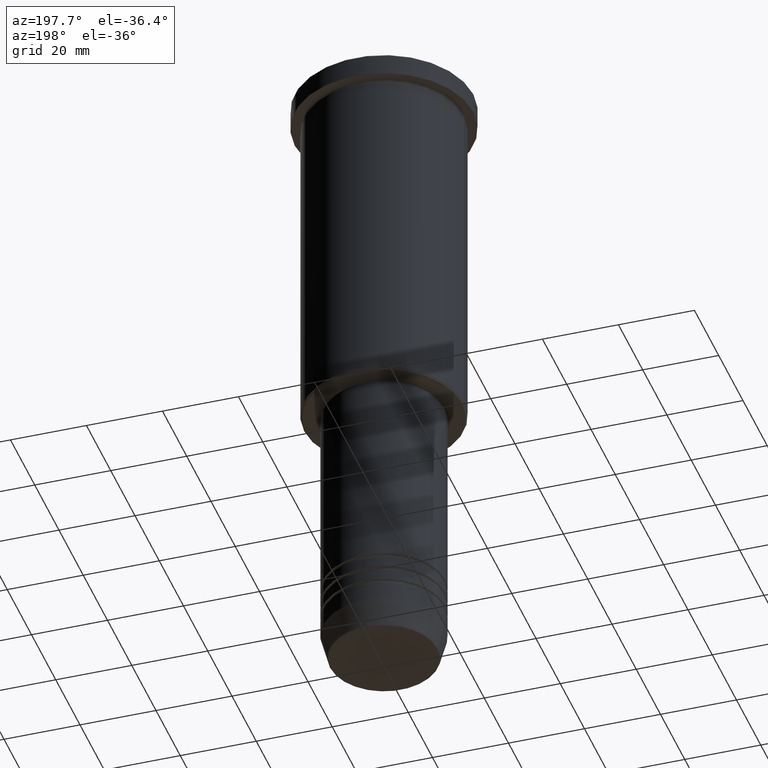
[diagram: clean part render]
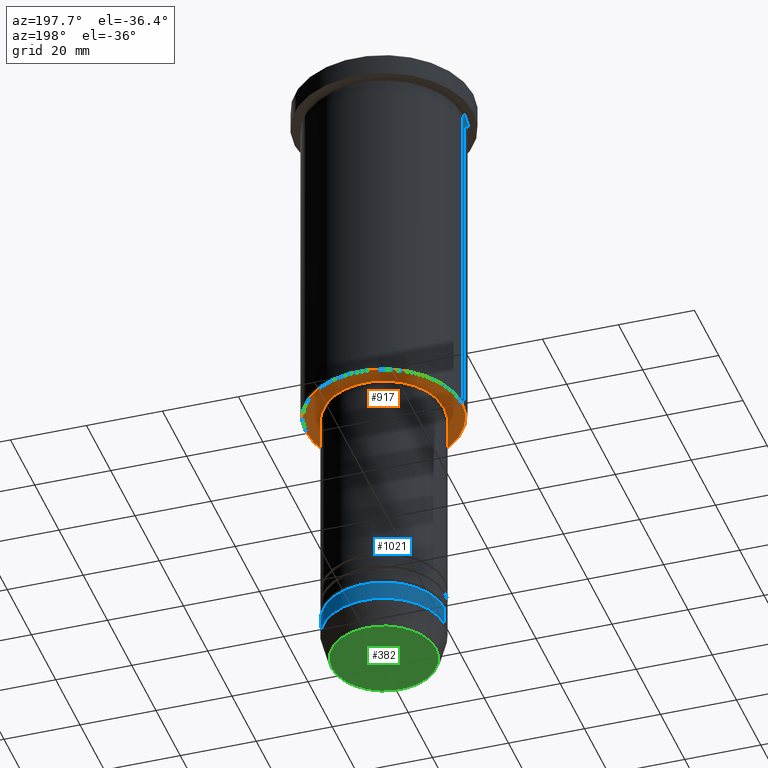
[diagram: same view with three faces highlighted in distinct colors, each labeled with its STEP entity id]
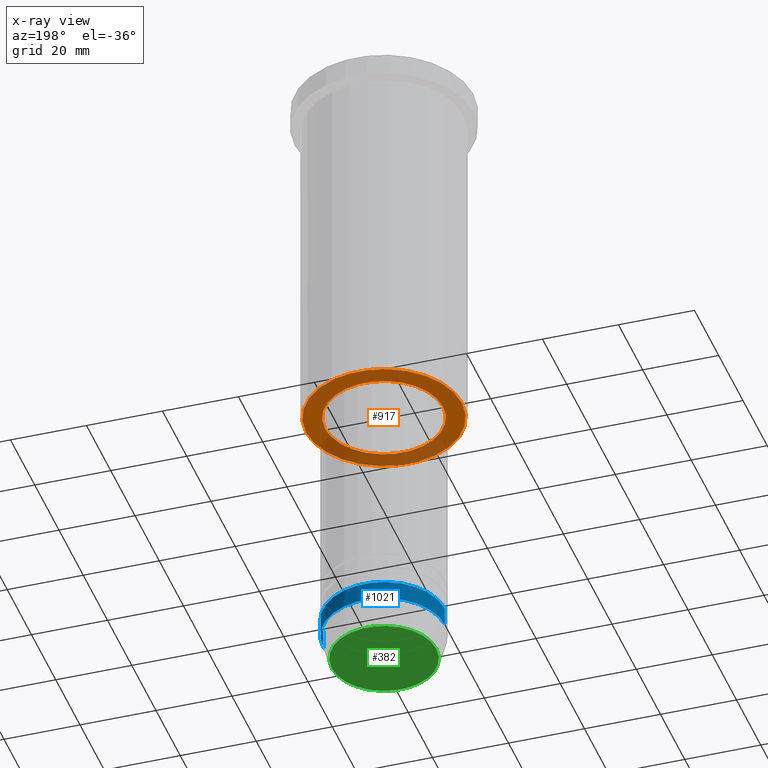
[diagram: x-ray of the same camera — body ghosted, the three highlighted faces saturated]
A machine part, auxiliary view with three faces highlighted in distinct colors.
The next image is the same camera in x-ray (body ghosted, the three faces saturated) — at least one of them is partly hidden behind the body in this view.
Their STEP definitions:

[orange] entity #917 — the highlighted planar face has unit normal (0, 0, -1).
#30 = CARTESIAN_POINT ( 'NONE',  ( -20.49999999999998934, 2.541142108230757480E-15, -95.99999999999997158 ) ) ;
#39 = CARTESIAN_POINT ( 'NONE',  ( -15.50000000000000000, 1.898202538678397557E-15, -95.99999999999997158 ) ) ;
#50 = CARTESIAN_POINT ( 'NONE',  ( 0.000000000000000000, 0.000000000000000000, -95.99999999999997158 ) ) ;
#58 = CARTESIAN_POINT ( 'NONE',  ( 0.000000000000000000, 0.000000000000000000, -95.99999999999997158 ) ) ;
#121 = CARTESIAN_POINT ( 'NONE',  ( 15.50000000000000000, 0.000000000000000000, -95.99999999999997158 ) ) ;
#196 = ORIENTED_EDGE ( 'NONE', *, *, #252, .T. ) ;
#199 = FACE_BOUND ( 'NONE', #1111, .T. ) ;
#219 = AXIS2_PLACEMENT_3D ( 'NONE', #796, #984, #529 ) ;
#252 = EDGE_CURVE ( 'NONE', #874, #349, #380, .T. ) ;
#263 = AXIS2_PLACEMENT_3D ( 'NONE', #58, #958, #1149 ) ;
#277 = CIRCLE ( 'NONE', #219, 20.49999999999998934 ) ;
#284 = AXIS2_PLACEMENT_3D ( 'NONE', #844, #1103, #742 ) ;
#298 = AXIS2_PLACEMENT_3D ( 'NONE', #50, #593, #521 ) ;
#349 = VERTEX_POINT ( 'NONE', #39 ) ;
#377 = VERTEX_POINT ( 'NONE', #30 ) ;
#380 = CIRCLE ( 'NONE', #263, 15.50000000000000000 ) ;
#453 = CARTESIAN_POINT ( 'NONE',  ( 20.49999999999998934, 0.000000000000000000, -95.99999999999997158 ) ) ;
#521 = DIRECTION ( 'NONE',  ( 1.000000000000000000, 0.000000000000000000, 0.000000000000000000 ) ) ;
#529 = DIRECTION ( 'NONE',  ( -1.000000000000000000, 0.000000000000000000, 0.000000000000000000 ) ) ;
#569 = AXIS2_PLACEMENT_3D ( 'NONE', #780, #1049, #1059 ) ;
#593 = DIRECTION ( 'NONE',  ( -0.000000000000000000, -0.000000000000000000, 1.000000000000000000 ) ) ;
#610 = ORIENTED_EDGE ( 'NONE', *, *, #1056, .T. ) ;
#670 = FACE_OUTER_BOUND ( 'NONE', #800, .T. ) ;
#708 = ORIENTED_EDGE ( 'NONE', *, *, #1167, .T. ) ;
#715 = VERTEX_POINT ( 'NONE', #453 ) ;
#742 = DIRECTION ( 'NONE',  ( -1.000000000000000000, 0.000000000000000000, -0.000000000000000000 ) ) ;
#780 = CARTESIAN_POINT ( 'NONE',  ( 0.000000000000000000, 0.000000000000000000, -95.99999999999997158 ) ) ;
#796 = CARTESIAN_POINT ( 'NONE',  ( 0.000000000000000000, 0.000000000000000000, -95.99999999999997158 ) ) ;
#800 = EDGE_LOOP ( 'NONE', ( #987, #708 ) ) ;
#817 = CIRCLE ( 'NONE', #298, 15.50000000000000000 ) ;
#844 = CARTESIAN_POINT ( 'NONE',  ( 0.000000000000000000, 21.00000000000000000, -95.99999999999997158 ) ) ;
#874 = VERTEX_POINT ( 'NONE', #121 ) ;
#917 = ADVANCED_FACE ( 'NONE', ( #670, #199 ), #1007, .T. ) ;
#958 = DIRECTION ( 'NONE',  ( -0.000000000000000000, -0.000000000000000000, 1.000000000000000000 ) ) ;
#984 = DIRECTION ( 'NONE',  ( 0.000000000000000000, 0.000000000000000000, -1.000000000000000000 ) ) ;
#987 = ORIENTED_EDGE ( 'NONE', *, *, #1005, .T. ) ;
#1005 = EDGE_CURVE ( 'NONE', #715, #377, #1079, .T. ) ;
#1007 = PLANE ( 'NONE',  #284 ) ;
#1049 = DIRECTION ( 'NONE',  ( 0.000000000000000000, 0.000000000000000000, -1.000000000000000000 ) ) ;
#1056 = EDGE_CURVE ( 'NONE', #349, #874, #817, .T. ) ;
#1059 = DIRECTION ( 'NONE',  ( -1.000000000000000000, 0.000000000000000000, 0.000000000000000000 ) ) ;
#1079 = CIRCLE ( 'NONE', #569, 20.49999999999998934 ) ;
#1103 = DIRECTION ( 'NONE',  ( 0.000000000000000000, 0.000000000000000000, -1.000000000000000000 ) ) ;
#1111 = EDGE_LOOP ( 'NONE', ( #196, #610 ) ) ;
#1149 = DIRECTION ( 'NONE',  ( 1.000000000000000000, 0.000000000000000000, 0.000000000000000000 ) ) ;
#1167 = EDGE_CURVE ( 'NONE', #377, #715, #277, .T. ) ;

[blue] entity #1021 — the highlighted cylindrical surface (partial cylindrical patch) has radius 16 mm, axis along (-0, -0, 1).
#34 = VECTOR ( 'NONE', #332, 1000.000000000000000 ) ;
#40 = CARTESIAN_POINT ( 'NONE',  ( 0.000000000000000000, 0.000000000000000000, -158.9999999999999716 ) ) ;
#49 = AXIS2_PLACEMENT_3D ( 'NONE', #1042, #331, #792 ) ;
#54 = CIRCLE ( 'NONE', #206, 16.00000000000000000 ) ;
#157 = CARTESIAN_POINT ( 'NONE',  ( 16.00000000000000000, 0.000000000000000000, 0.000000000000000000 ) ) ;
#158 = DIRECTION ( 'NONE',  ( -0.000000000000000000, -0.000000000000000000, 1.000000000000000000 ) ) ;
#167 = EDGE_CURVE ( 'NONE', #297, #807, #978, .T. ) ;
#170 = VECTOR ( 'NONE', #158, 1000.000000000000000 ) ;
#206 = AXIS2_PLACEMENT_3D ( 'NONE', #727, #1031, #1110 ) ;
#232 = ORIENTED_EDGE ( 'NONE', *, *, #167, .F. ) ;
#274 = CARTESIAN_POINT ( 'NONE',  ( -16.00000000000000000, 1.959434878635765131E-15, 0.000000000000000000 ) ) ;
#297 = VERTEX_POINT ( 'NONE', #300 ) ;
#300 = CARTESIAN_POINT ( 'NONE',  ( 16.00000000000000000, 0.000000000000000000, -163.9999999999999716 ) ) ;
#309 = FACE_OUTER_BOUND ( 'NONE', #643, .T. ) ;
#314 = CYLINDRICAL_SURFACE ( 'NONE', #49, 16.00000000000000000 ) ;
#331 = DIRECTION ( 'NONE',  ( -0.000000000000000000, -0.000000000000000000, 1.000000000000000000 ) ) ;
#332 = DIRECTION ( 'NONE',  ( -0.000000000000000000, -0.000000000000000000, 1.000000000000000000 ) ) ;
#468 = ORIENTED_EDGE ( 'NONE', *, *, #841, .T. ) ;
#482 = ORIENTED_EDGE ( 'NONE', *, *, #785, .T. ) ;
#516 = ORIENTED_EDGE ( 'NONE', *, *, #1012, .F. ) ;
#551 = CARTESIAN_POINT ( 'NONE',  ( 16.00000000000000000, 0.000000000000000000, -158.9999999999999716 ) ) ;
#606 = AXIS2_PLACEMENT_3D ( 'NONE', #40, #871, #866 ) ;
#643 = EDGE_LOOP ( 'NONE', ( #468, #482, #516, #232 ) ) ;
#727 = CARTESIAN_POINT ( 'NONE',  ( 0.000000000000000000, 0.000000000000000000, -163.9999999999999716 ) ) ;
#731 = CARTESIAN_POINT ( 'NONE',  ( -16.00000000000000000, 1.959434878635765131E-15, -158.9999999999999716 ) ) ;
#785 = EDGE_CURVE ( 'NONE', #1070, #828, #1090, .T. ) ;
#792 = DIRECTION ( 'NONE',  ( 1.000000000000000000, 0.000000000000000000, 0.000000000000000000 ) ) ;
#807 = VERTEX_POINT ( 'NONE', #551 ) ;
#828 = VERTEX_POINT ( 'NONE', #731 ) ;
#841 = EDGE_CURVE ( 'NONE', #297, #1070, #54, .T. ) ;
#866 = DIRECTION ( 'NONE',  ( 1.000000000000000000, 0.000000000000000000, 0.000000000000000000 ) ) ;
#871 = DIRECTION ( 'NONE',  ( -0.000000000000000000, -0.000000000000000000, 1.000000000000000000 ) ) ;
#872 = CIRCLE ( 'NONE', #606, 16.00000000000000000 ) ;
#962 = CARTESIAN_POINT ( 'NONE',  ( -16.00000000000000000, 1.959434878635765131E-15, -163.9999999999999716 ) ) ;
#978 = LINE ( 'NONE', #157, #34 ) ;
#1012 = EDGE_CURVE ( 'NONE', #807, #828, #872, .T. ) ;
#1021 = ADVANCED_FACE ( 'NONE', ( #309 ), #314, .T. ) ;
#1031 = DIRECTION ( 'NONE',  ( -0.000000000000000000, -0.000000000000000000, 1.000000000000000000 ) ) ;
#1042 = CARTESIAN_POINT ( 'NONE',  ( 0.000000000000000000, 0.000000000000000000, 0.000000000000000000 ) ) ;
#1070 = VERTEX_POINT ( 'NONE', #962 ) ;
#1090 = LINE ( 'NONE', #274, #170 ) ;
#1110 = DIRECTION ( 'NONE',  ( 1.000000000000000000, 0.000000000000000000, 0.000000000000000000 ) ) ;

[green] entity #382 — the highlighted planar face has unit normal (0, -0, 1).
#17 = AXIS2_PLACEMENT_3D ( 'NONE', #682, #393, #221 ) ;
#26 = FACE_OUTER_BOUND ( 'NONE', #279, .T. ) ;
#47 = ORIENTED_EDGE ( 'NONE', *, *, #421, .T. ) ;
#177 = VERTEX_POINT ( 'NONE', #797 ) ;
#220 = ORIENTED_EDGE ( 'NONE', *, *, #389, .T. ) ;
#221 = DIRECTION ( 'NONE',  ( 1.000000000000000000, 0.000000000000000000, 0.000000000000000000 ) ) ;
#279 = EDGE_LOOP ( 'NONE', ( #47, #220 ) ) ;
#302 = AXIS2_PLACEMENT_3D ( 'NONE', #500, #308, #327 ) ;
#308 = DIRECTION ( 'NONE',  ( 0.000000000000000000, -0.000000000000000000, 1.000000000000000000 ) ) ;
#327 = DIRECTION ( 'NONE',  ( 1.000000000000000000, 0.000000000000000000, 0.000000000000000000 ) ) ;
#342 = CIRCLE ( 'NONE', #17, 13.74069215899265828 ) ;
#382 = ADVANCED_FACE ( 'NONE', ( #26 ), #1125, .F. ) ;
#389 = EDGE_CURVE ( 'NONE', #177, #1011, #342, .T. ) ;
#393 = DIRECTION ( 'NONE',  ( 0.000000000000000000, 0.000000000000000000, -1.000000000000000000 ) ) ;
#421 = EDGE_CURVE ( 'NONE', #1011, #177, #456, .T. ) ;
#456 = CIRCLE ( 'NONE', #592, 13.74069215899265828 ) ;
#500 = CARTESIAN_POINT ( 'NONE',  ( 0.000000000000000000, 0.000000000000000000, -170.9999999999999716 ) ) ;
#592 = AXIS2_PLACEMENT_3D ( 'NONE', #1047, #1034, #1052 ) ;
#682 = CARTESIAN_POINT ( 'NONE',  ( 0.000000000000000000, 0.000000000000000000, -170.9999999999999716 ) ) ;
#797 = CARTESIAN_POINT ( 'NONE',  ( -13.74069215899265828, 1.712322416342415986E-15, -170.9999999999999716 ) ) ;
#1011 = VERTEX_POINT ( 'NONE', #1151 ) ;
#1034 = DIRECTION ( 'NONE',  ( 0.000000000000000000, 0.000000000000000000, -1.000000000000000000 ) ) ;
#1047 = CARTESIAN_POINT ( 'NONE',  ( 0.000000000000000000, 0.000000000000000000, -170.9999999999999716 ) ) ;
#1052 = DIRECTION ( 'NONE',  ( 1.000000000000000000, 0.000000000000000000, 0.000000000000000000 ) ) ;
#1125 = PLANE ( 'NONE',  #302 ) ;
#1151 = CARTESIAN_POINT ( 'NONE',  ( 13.74069215899265828, 0.000000000000000000, -170.9999999999999716 ) ) ;